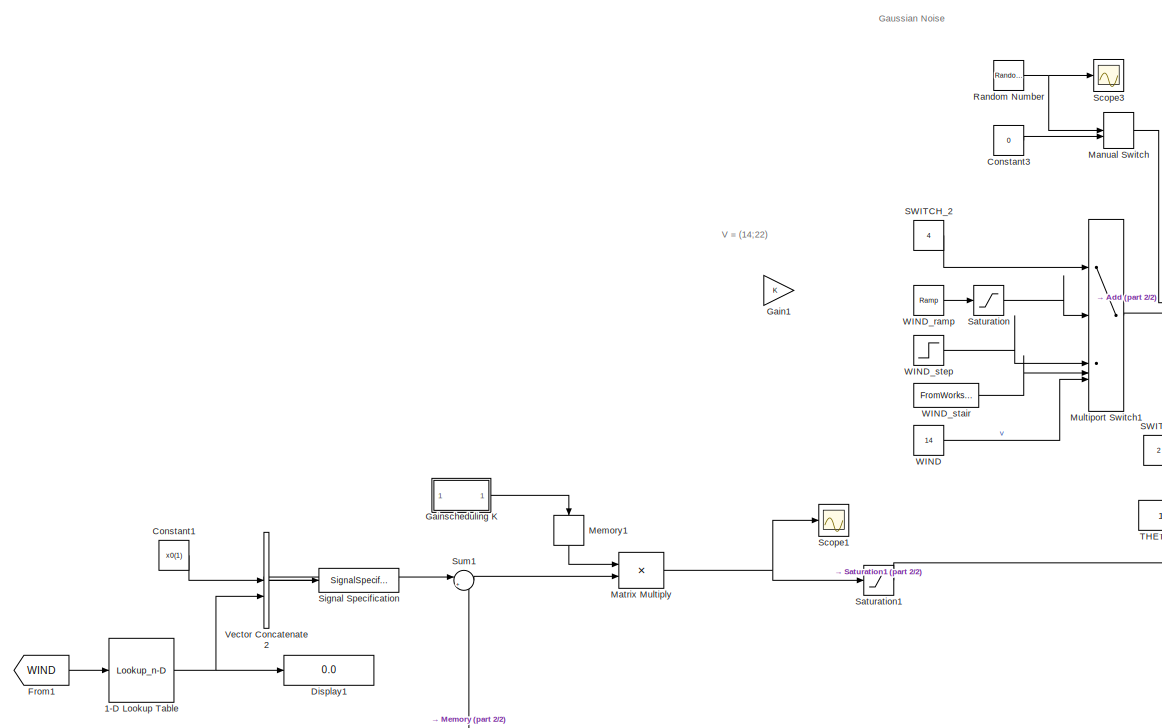
[diagram: root canvas - part 1/2, left side, full height]
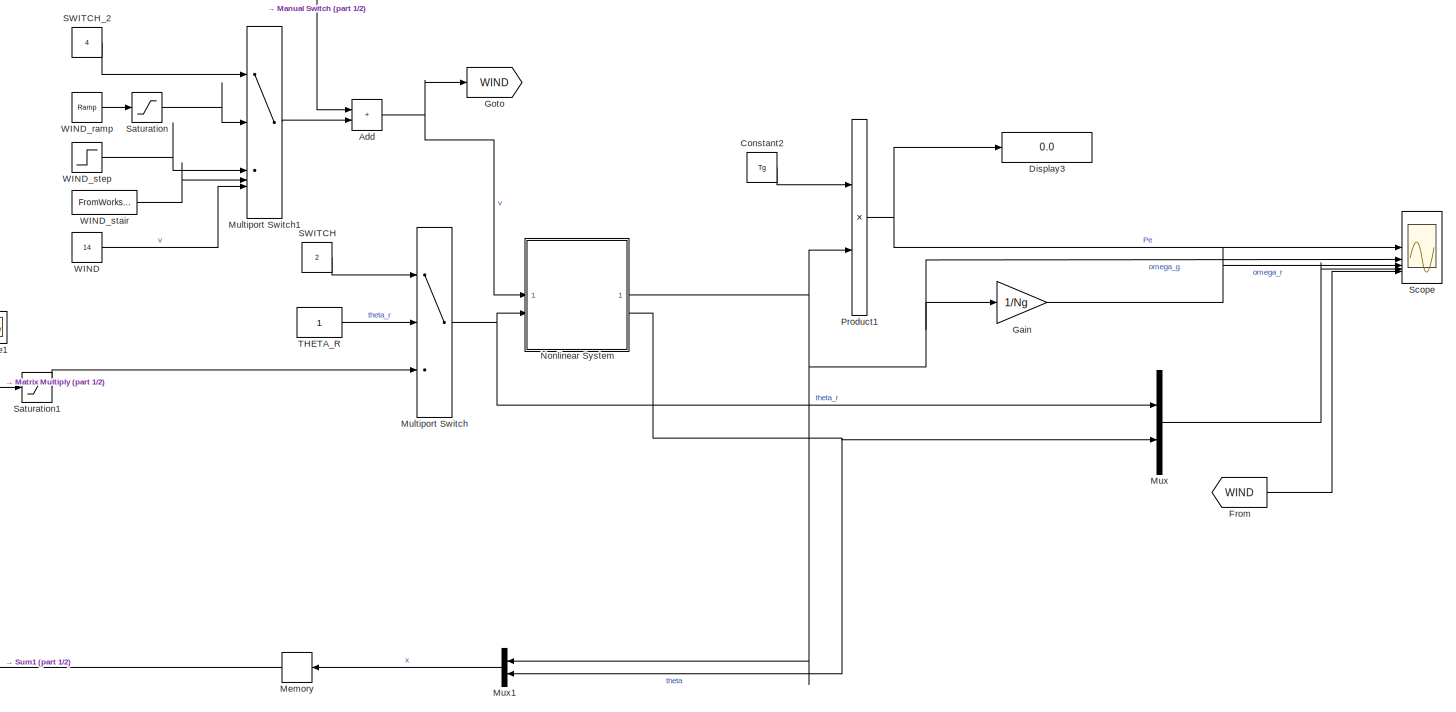
[diagram: root canvas - part 2/2, right side, full height]
MODEL slx_13a96e2483d9
KIND model
CONFIG AbsTol = auto
CONFIG EnableMultiTasking = off
CONFIG FixedStep = 1e-3
CONFIG MaxStep = auto
CONFIG MinStep = auto
CONFIG RelTol = 1e-3
CONFIG SampleTimeConstraint = Unconstrained
CONFIG SolverName = ode8
CONFIG StartTime = 0.0
CONFIG StopTime = 5
BLOCK [Lookup_n-D] 1-D Lookup Table
  BreakpointsForDimension1 = [14 16 18 20 22]
  InputPortMap = u0
  InternalRulePriority = Speed
  NumberOfTableDimensions = 1
  RndMeth = Simplest
  Table = [11.9 16.2 19.1 21.2 22.8]
BLOCK [Sum] Add
  IconShape = rectangular
BLOCK [Constant] Constant1
  Value = x0(1)
BLOCK [Constant] Constant2
  Value = Tg
BLOCK [Constant] Constant3
  Value = 0
BLOCK [Display] Display1
  Decimation = 1
BLOCK [Display] Display3
  Decimation = 1
BLOCK [From] From
  GotoTag = WIND
  TagVisibility = global
BLOCK [From] From1
  GotoTag = WIND
  TagVisibility = global
BLOCK [Gain] Gain
  Gain = 1/Ng
BLOCK [Gain] Gain1
  Commented = on
  Gain = K
  Multiplication = Matrix(K*u)
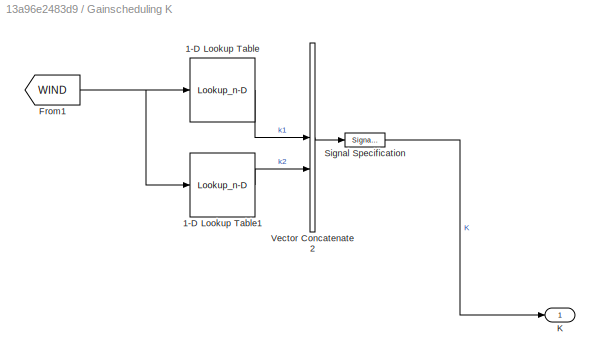
BLOCK [SubSystem] Gainscheduling K
BLOCK [Lookup_n-D] Gainscheduling K/1-D Lookup Table
  BreakpointsForDimension1 = [14 16 18 20 22]
  InputPortMap = u0
  InternalRulePriority = Speed
  NumberOfTableDimensions = 1
  RndMeth = Simplest
  Table = [0.1658 0.0683 0.0367 0.0229 0.0155]
BLOCK [Lookup_n-D] Gainscheduling K/1-D Lookup Table1
  BreakpointsForDimension1 = [14 16 18 20 22]
  InputPortMap = u0
  InternalRulePriority = Speed
  NumberOfTableDimensions = 1
  RndMeth = Simplest
  Table = [8.1869 20.6413 35.2098 52.5979 73.7912]
BLOCK [From] Gainscheduling K/From1
  GotoTag = WIND
  TagVisibility = global
BLOCK [Outport] Gainscheduling K/K
BLOCK [SignalSpecification] Gainscheduling K/Signal Specification
  Dimensions = [1 2]
BLOCK [Concatenate] Gainscheduling K/Vector Concatenate2
BLOCK [Goto] Goto
  GotoTag = WIND
  TagVisibility = global
BLOCK [ManualSwitch] Manual Switch
  CurrentSetting = 0
BLOCK [Product] Matrix Multiply
  Multiplication = Matrix(*)
BLOCK [Memory] Memory
  InitialCondition = x0
BLOCK [Memory] Memory1
  InitialCondition = K
  NameLocation = left
BLOCK [MultiPortSwitch] Multiport Switch
  InputSameDT = off
  Inputs = 2
  SaturateOnIntegerOverflow = off
BLOCK [MultiPortSwitch] Multiport Switch1
  InputSameDT = off
  Inputs = 4
  SaturateOnIntegerOverflow = off
BLOCK [Mux] Mux
  DisplayOption = bar
  Inputs = 2
BLOCK [Mux] Mux1
  DisplayOption = bar
  Inputs = 2
  NameLocation = top
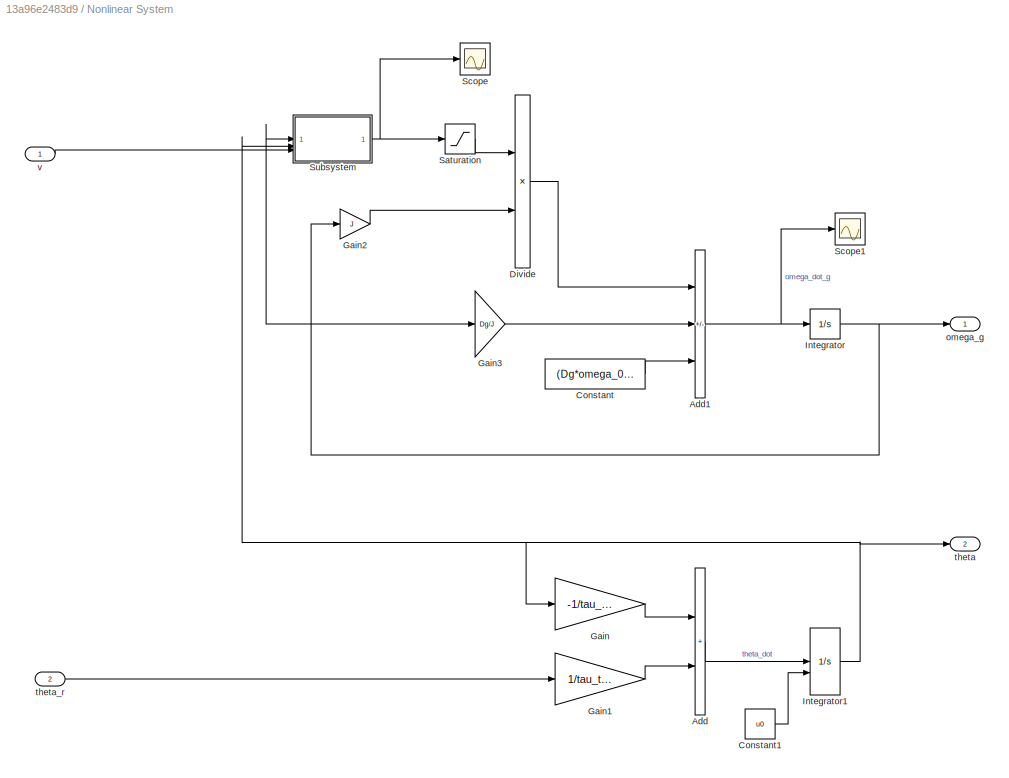
BLOCK [SubSystem] Nonlinear System
BLOCK [Sum] Nonlinear System/Add
  IconShape = rectangular
BLOCK [Sum] Nonlinear System/Add1
  IconShape = rectangular
  Inputs = +-+
BLOCK [Constant] Nonlinear System/Constant
  Value = (Dg*omega_0)/(J*p)
BLOCK [Constant] Nonlinear System/Constant1
  Value = u0
BLOCK [Product] Nonlinear System/Divide
  Inputs = */
BLOCK [Gain] Nonlinear System/Gain
  Gain = -1/tau_theta
BLOCK [Gain] Nonlinear System/Gain1
  Gain = 1/tau_theta
BLOCK [Gain] Nonlinear System/Gain2
  Gain = J
BLOCK [Gain] Nonlinear System/Gain3
  Gain = Dg/J
BLOCK [Integrator] Nonlinear System/Integrator
  InitialCondition = x0(1)
BLOCK [Integrator] Nonlinear System/Integrator1
  InitialCondition = 1
  InitialConditionSource = external
BLOCK [Saturate] Nonlinear System/Saturation
  LowerLimit = 1
  UpperLimit = inf
BLOCK [Scope] Nonlinear System/Scope
  Floating = off
  NumInputPorts = 1
  ScopeSpecificationString = Simulink.scopes.TimeScopeBlockCfg('CurrentConfiguration', extmgr.ConfigurationSet(extmgr.Configuration('Core','General UI',true),extmgr.Configuration('Core','Source UI',true),extmgr.Configuration('Sources','WiredSimulink',true,'DataLoggingVariableName','ScopeData2'),extmgr.Configuration('Visuals','Time Domain',true,'SerializedDisplays',{struct('MinYLimReal','29082.94914','MaxYLimReal','613206.5459...<+1402ch>
BLOCK [Scope] Nonlinear System/Scope1
  Floating = off
  NumInputPorts = 1
  ScopeSpecificationString = Simulink.scopes.TimeScopeBlockCfg('CurrentConfiguration', extmgr.ConfigurationSet(extmgr.Configuration('Core','General UI',true),extmgr.Configuration('Core','Source UI',true),extmgr.Configuration('Sources','WiredSimulink',true,'DataLoggingVariableName','ScopeData1'),extmgr.Configuration('Visuals','Time Domain',true,'SerializedDisplays',{struct('MinYLimReal','-34.37622','MaxYLimReal','174.71403','Y...<+1380ch>
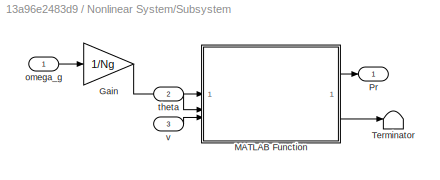
BLOCK [SubSystem] Nonlinear System/Subsystem
BLOCK [Gain] Nonlinear System/Subsystem/Gain
  Gain = 1/Ng
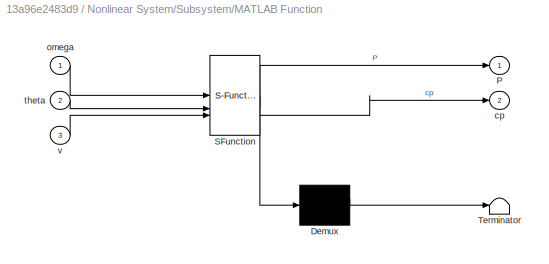
BLOCK [SubSystem] Nonlinear System/Subsystem/MATLAB Function
  ErrorFcn = Stateflow.Translate.translate
  PermitHierarchicalResolution = ExplicitOnly
  SFBlockType = MATLAB Function
  TreatAsAtomicUnit = on
BLOCK [Demux] Nonlinear System/Subsystem/MATLAB Function/ Demux 
  Outputs = 1
BLOCK [S-Function] Nonlinear System/Subsystem/MATLAB Function/ SFunction 
  EnableBusSupport = on
  FunctionName = sf_sfun
  PortCounts = [3 3]
  SFcnIsStateOwnerBlock = off
  SFunctionDeploymentMode = off
  Tag = Stateflow S-Function 2
BLOCK [Terminator] Nonlinear System/Subsystem/MATLAB Function/ Terminator 
BLOCK [Outport] Nonlinear System/Subsystem/MATLAB Function/P
BLOCK [Outport] Nonlinear System/Subsystem/MATLAB Function/cp
  Port = 2
BLOCK [Inport] Nonlinear System/Subsystem/MATLAB Function/omega
BLOCK [Inport] Nonlinear System/Subsystem/MATLAB Function/theta
  Port = 2
BLOCK [Inport] Nonlinear System/Subsystem/MATLAB Function/v
  Port = 3
BLOCK [Outport] Nonlinear System/Subsystem/Pr
BLOCK [Terminator] Nonlinear System/Subsystem/Terminator
BLOCK [Inport] Nonlinear System/Subsystem/omega_g
  NameLocation = left
BLOCK [Inport] Nonlinear System/Subsystem/theta
  NameLocation = left
  Port = 2
BLOCK [Inport] Nonlinear System/Subsystem/v
  NameLocation = left
  Port = 3
BLOCK [Outport] Nonlinear System/omega_g
BLOCK [Outport] Nonlinear System/theta
  Port = 2
BLOCK [Inport] Nonlinear System/theta_r
  Port = 2
BLOCK [Inport] Nonlinear System/v
BLOCK [Product] Product1
BLOCK [RandomNumber] Random Number
  SampleTime = 1e-2
BLOCK [Constant] SWITCH
  Value = 2
BLOCK [Constant] SWITCH_2
  Value = 4
BLOCK [Saturate] Saturation
  LowerLimit = 12
  UpperLimit = 22
BLOCK [Saturate] Saturation1
  LowerLimit = theta_min
  UpperLimit = theta_max
BLOCK [Scope] Scope
  Floating = off
  NumInputPorts = 5
  ScopeSpecificationString = Simulink.scopes.TimeScopeBlockCfg('CurrentConfiguration', extmgr.ConfigurationSet(extmgr.Configuration('Core','General UI',true),extmgr.Configuration('Core','Source UI',true),extmgr.Configuration('Sources','WiredSimulink',true),extmgr.Configuration('Visuals','Time Domain',true,'SerializedDisplays',{struct('MinYLimReal','224523.72445','MaxYLimReal','226578.83542','YLabelReal','','MinYLimMag','22452...<+5785ch>
BLOCK [Scope] Scope1
  Floating = off
  NumInputPorts = 1
  ScopeSpecificationString = Simulink.scopes.TimeScopeBlockCfg('CurrentConfiguration', extmgr.ConfigurationSet(extmgr.Configuration('Core','General UI',true),extmgr.Configuration('Core','Source UI',true),extmgr.Configuration('Sources','WiredSimulink',true,'DataLoggingVariableName','ScopeData2'),extmgr.Configuration('Visuals','Time Domain',true,'SerializedDisplays',{struct('MinYLimReal','-200.12171','MaxYLimReal','428.27447','...<+1388ch>
BLOCK [Scope] Scope3
  Floating = off
  NumInputPorts = 1
  ScopeSpecificationString = Simulink.scopes.TimeScopeBlockCfg('CurrentConfiguration', extmgr.ConfigurationSet(extmgr.Configuration('Core','General UI',true),extmgr.Configuration('Core','Source UI',true),extmgr.Configuration('Sources','WiredSimulink',true,'DataLoggingVariableName','ScopeData2'),extmgr.Configuration('Visuals','Time Domain',true,'SerializedDisplays',{struct('MinYLimReal','-8.12298','MaxYLimReal','8.87018','YLab...<+1372ch>
BLOCK [SignalSpecification] Signal Specification
  Dimensions = [2 1]
BLOCK [Sum] Sum1
  Inputs = |+-
BLOCK [Constant] THETA_R
BLOCK [Concatenate] Vector Concatenate2
BLOCK [Constant] WIND
  Value = 14
BLOCK [Reference] WIND_ramp  REF=simulink/Sources/Ramp
  SourceBlock = simulink/Sources/Ramp
  SourceType = Ramp
BLOCK [FromWorkspace] WIND_stair
  VariableName = v_stair
BLOCK [Step] WIND_step
  After = 22
  Before = 14
  SampleTime = 0
ANNOTATION (root): Gaussian Noise
ANNOTATION (root): V = (14;22)
NET 1-D Lookup Table:1 -> Display1:1, Vector Concatenate2:2
NET Add:1 -> Goto:1, Nonlinear System:1
LINE Constant1:1 -> Vector Concatenate2:1
LINE Constant2:1 -> Product1:1
LINE Constant3:1 -> Manual Switch:2
LINE From1:1 -> 1-D Lookup Table:1
LINE From:1 -> Scope:5
LINE Gain:1 -> Scope:3
LINE Gainscheduling K/1-D Lookup Table1:1 -> Gainscheduling K/Vector Concatenate2:2
LINE Gainscheduling K/1-D Lookup Table:1 -> Gainscheduling K/Vector Concatenate2:1
NET Gainscheduling K/From1:1 -> Gainscheduling K/1-D Lookup Table1:1, Gainscheduling K/1-D Lookup Table:1
LINE Gainscheduling K/Signal Specification:1 -> Gainscheduling K/K:1
LINE Gainscheduling K/Vector Concatenate2:1 -> Gainscheduling K/Signal Specification:1
LINE Gainscheduling K:1 -> Memory1:1
LINE Manual Switch:1 -> Add:1
NET Matrix Multiply:1 -> Saturation1:1, Scope1:1
LINE Memory1:1 -> Matrix Multiply:1
LINE Memory:1 -> Sum1:2
LINE Multiport Switch1:1 -> Add:2
NET Multiport Switch:1 -> Mux:1, Nonlinear System:2
LINE Mux1:1 -> Memory:1
LINE Mux:1 -> Scope:4
NET Nonlinear System/Add1:1 -> Nonlinear System/Integrator:1, Nonlinear System/Scope1:1
LINE Nonlinear System/Add:1 -> Nonlinear System/Integrator1:1
LINE Nonlinear System/Constant1:1 -> Nonlinear System/Integrator1:2
LINE Nonlinear System/Constant:1 -> Nonlinear System/Add1:3
LINE Nonlinear System/Divide:1 -> Nonlinear System/Add1:1
LINE Nonlinear System/Gain1:1 -> Nonlinear System/Add:2
LINE Nonlinear System/Gain2:1 -> Nonlinear System/Divide:2
LINE Nonlinear System/Gain3:1 -> Nonlinear System/Add1:2
LINE Nonlinear System/Gain:1 -> Nonlinear System/Add:1
NET Nonlinear System/Integrator1:1 -> Nonlinear System/Gain:1, Nonlinear System/Subsystem:2, Nonlinear System/theta:1
NET Nonlinear System/Integrator:1 -> Nonlinear System/Gain2:1, Nonlinear System/Gain3:1, Nonlinear System/Subsystem:1, Nonlinear System/omega_g:1
LINE Nonlinear System/Saturation:1 -> Nonlinear System/Divide:1
LINE Nonlinear System/Subsystem/Gain:1 -> Nonlinear System/Subsystem/MATLAB Function:1
LINE Nonlinear System/Subsystem/MATLAB Function:1 -> Nonlinear System/Subsystem/Pr:1
LINE Nonlinear System/Subsystem/MATLAB Function:2 -> Nonlinear System/Subsystem/Terminator:1
LINE Nonlinear System/Subsystem/omega_g:1 -> Nonlinear System/Subsystem/Gain:1
LINE Nonlinear System/Subsystem/theta:1 -> Nonlinear System/Subsystem/MATLAB Function:2
LINE Nonlinear System/Subsystem/v:1 -> Nonlinear System/Subsystem/MATLAB Function:3
NET Nonlinear System/Subsystem:1 -> Nonlinear System/Saturation:1, Nonlinear System/Scope:1
LINE Nonlinear System/theta_r:1 -> Nonlinear System/Gain1:1
LINE Nonlinear System/v:1 -> Nonlinear System/Subsystem:3
NET Nonlinear System:1 -> Gain:1, Mux1:1, Product1:2, Scope:2
NET Nonlinear System:2 -> Mux1:2, Mux:2
NET Product1:1 -> Display3:1, Scope:1
NET Random Number:1 -> Manual Switch:1, Scope3:1
LINE SWITCH:1 -> Multiport Switch:1
LINE SWITCH_2:1 -> Multiport Switch1:1
LINE Saturation1:1 -> Multiport Switch:3
LINE Saturation:1 -> Multiport Switch1:2
LINE Signal Specification:1 -> Sum1:1
LINE Sum1:1 -> Matrix Multiply:2
LINE THETA_R:1 -> Multiport Switch:2
LINE Vector Concatenate2:1 -> Signal Specification:1
LINE WIND:1 -> Multiport Switch1:5
LINE WIND_ramp:1 -> Saturation:1
LINE WIND_stair:1 -> Multiport Switch1:4
LINE WIND_step:1 -> Multiport Switch1:3
note: NET lines group one-source signal fan-out (src -> all destinations, sorted); 1:1 wires keep LINE
CHART Nonlinear System/Subsystem/MATLAB Function states=1 transitions=1
  STATE_LABEL 'eML_blk_kernel()'
  STATE_LABEL 'SCRIPT:\nfunction [P,cp] = getAerodynamics(omega,theta,v)\n\nR = 14.5;\nrho = 1.2;\n\nlambda = v/(R*omega);\nlambda_t = 1/(1/(lambda^-1 + 0.12*theta) - 0.0035/((1.5*theta)^3 + 1));\n\ncp = 0.22*(116/lambda_t - 0.6*theta - 5)*exp(-12.5/lambda_t);\n\nP = 1/2*rho*pi*(R^2)*(v^3)*abs(cp);\n'
CHART  states=0 transitions=0
